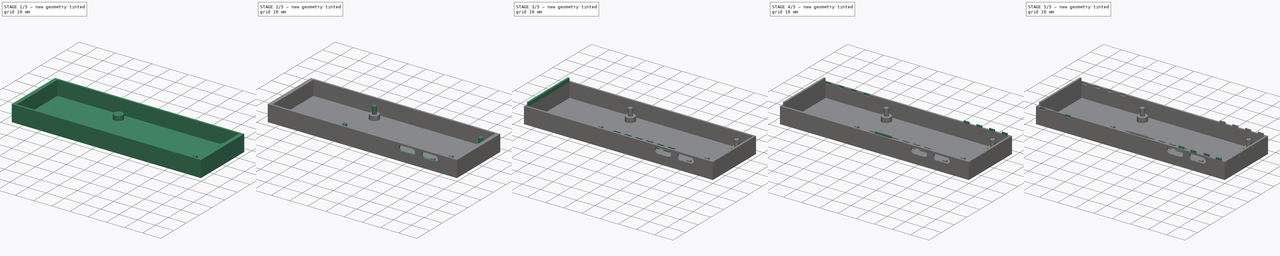
[diagram: build sequence overview — one tinted view per stage of 5, left to right]
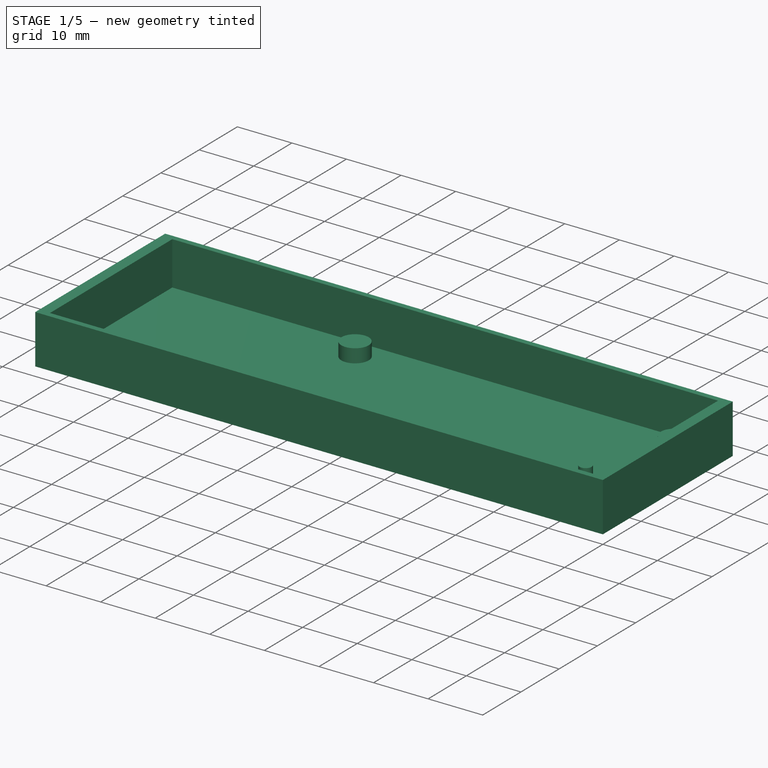
[diagram: stage 1 of 5 — iso view after this stage's code; geometry added in this stage tinted green]
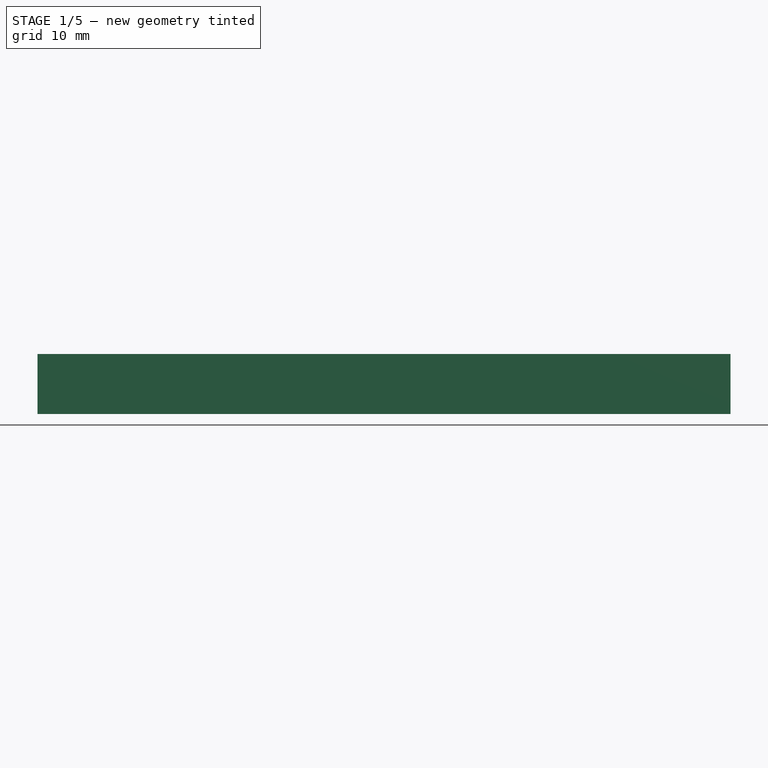
[diagram: stage 1 of 5 — front view after this stage's code; geometry added in this stage tinted green]
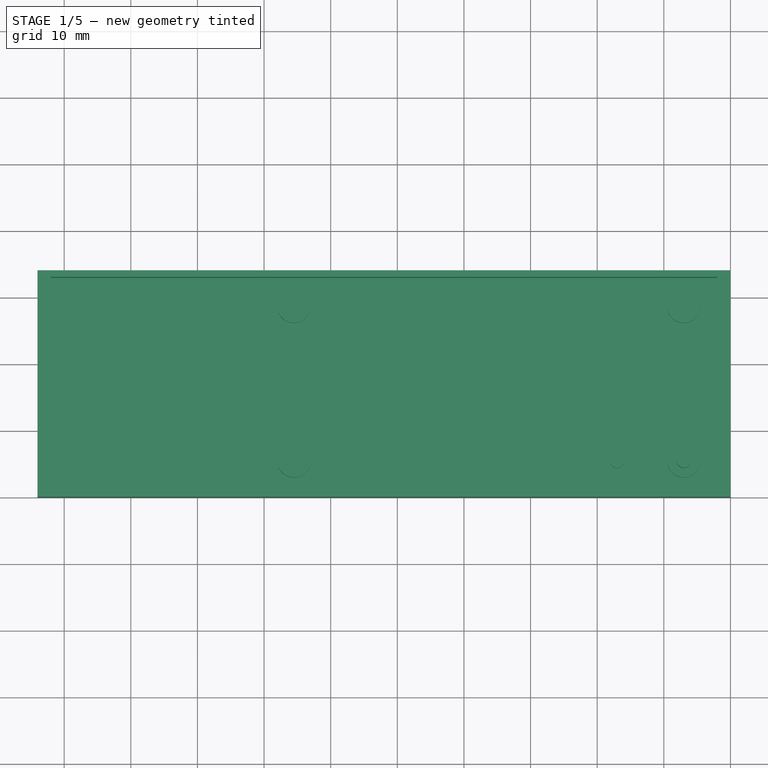
[diagram: stage 1 of 5 — top view after this stage's code; geometry added in this stage tinted green]
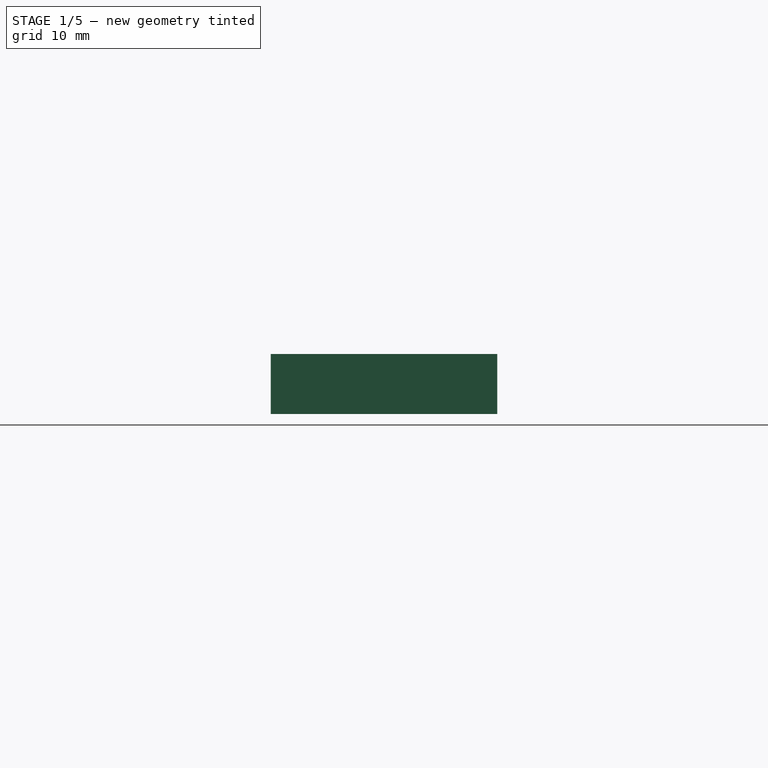
[diagram: stage 1 of 5 — right view after this stage's code; geometry added in this stage tinted green]
FCSTD DOCUMENT  (FreeCAD 0.19R23323 (Git))
Label: raspibox
License: All rights reserved
LicenseURL: http://en.wikipedia.org/wiki/All_rights_reserved
objects: Sketcher::SketchObject×19, PartDesign::Pad×11, PartDesign::Pocket×8, Spreadsheet::Sheet×1, App::Part×1, PartDesign::LinearPattern×1, PartDesign::Body×1
note: 59 computed .brp shape members not serialized (recipe doc carries the construction recipe); baked Part::Feature solids carry a one-line shape summary decoded from their .brp

FEATURE [Spreadsheet::Sheet] Spreadsheet
  cells = A1="inner_x_size; B1(inner_x_size)=100; D1=70; A2="inner_y_size; B2(inner_y_size)=32; A3="inner_z_size; B3(inner_z_size)=8; A5="wall_x_thickness; B5(wall_x_thickness)=2; A6="wall_y_thickness; B6(wall_y_thickness)=1; A7="wall_z_thickness; B7(wall_z_thickness)=1; A9="inlet_height; B9(inlet_height)=2; A11="pin_rect_x_origin; B11(pin_rect_x_origin)=5; A12="pin_rect_y_origin; B12(pin_rect_y_origin)=4.5; A13="pin_rect_x_size; B13(pin_rect_x_size)=58.5; A14="pin_rect_y_size; B14(pin_rect_y_size)=23.2; A16="base_pin_diameter; B16(base_pin_diameter)=5; A17="base_pin_height; B17(base_pin_height)=2.5; A19="thin_pin_diameter; B19(thin_pin_diameter)=2.2; D19=2.5 is too tight; A20="thin_pin_height; B20(thin_pin_height)=4; A22="thin_key_pin_offset; B22(thin_key_pin_offset)=10; A24="usb1_offset; B24(usb1_offset)=5; A25="usb2_offset; B25(usb2_offset)=17.5; A27="pcb_thickness; B27(pcb_thickness)=1.5; A29="usb_hole_z_size; B29(usb_hole_z_size)=3; A30="usb_hole_x_size; B30(usb_hole_x_size)=9; A32="vent_hole_x_size; B32(vent_hole_x_size)=3; A33="vent_hole_y_size; B33(vent_hole_y_size)=1; A35="vent_hole_x_origin; B35(vent_hole_x_origin)=60; A36="vent_hole_y_origin; B36(vent_hole_y_origin)=10; A38="vent_hole_x_rect_size; B38(vent_hole_x_rect_size)=30; A39="vent_hole_y_rect_size; B39(vent_hole_y_rect_size)=20; A40="vent_hole_x_reps; B40(vent_hole_x_reps)=6; A41="vent_hole_y_reps; B41(vent_hole_y_reps)=5; A43="inlet_x_distance; B43(inlet_x_distance)=4; A44="inlet_x_size; B44(inlet_x_size)=3; A45="inlet_side_height; B45(inlet_side_height)=1
FEATURE [App::Part] Part
  Origin = -> Origin
FEATURE [Sketcher::SketchObject] Sketch  label="outerbox"
  MapMode = 5
  Support = -> [XY_Plane001]
  expr: Constraints[10] = Spreadsheet.inner_y_size + 2 * Spreadsheet.wall_y_thickness
  expr: Constraints[9] = Spreadsheet.inner_x_size + 2 * Spreadsheet.wall_x_thickness
  sketch-geometry (4):
    g0: LineSegment StartX=-104 StartY=34 StartZ=0 EndX=0 EndY=34 EndZ=0
    g1: LineSegment StartX=0 StartY=34 StartZ=0 EndX=0 EndY=0 EndZ=0
    g2: LineSegment StartX=0 StartY=0 StartZ=0 EndX=-104 EndY=0 EndZ=0
    g3: LineSegment StartX=-104 StartY=0 StartZ=0 EndX=-104 EndY=34 EndZ=0
  constraints (11):
    c: Coincident(g0,g1)
    c: Coincident(g1,g2)
    c: Coincident(g2,g3)
    c: Coincident(g3,g0)
    c: Horizontal(g0)
    c: Horizontal(g2)
    c: Vertical(g1)
    c: Vertical(g3)
    c: Coincident(g1,g-1)
    c: DistanceX(g0,g0) = 104
    c: DistanceY(g2,g0) = 34
FEATURE [PartDesign::Pad] Pad
  Direction = (1,1,1)
  Length = 9
  Length2 = 100
  Profile = -> Sketch
  Type = 0
  expr: Length = Spreadsheet.inner_z_size + Spreadsheet.wall_z_thickness
FEATURE [Sketcher::SketchObject] Sketch001  label="innerbox"
  MapMode = 5
  Placement = pos=(0,0,9) rot=(0,0,1;0rad)
  Support = -> [Pad]
  expr: Constraints[11] = Spreadsheet.inner_y_size
  expr: Constraints[10] = Spreadsheet.inner_x_size
  expr: Constraints[9] = Spreadsheet.wall_x_thickness
  expr: Constraints[8] = Spreadsheet.wall_y_thickness
  sketch-geometry (4):
    g0: LineSegment StartX=-102 StartY=33 StartZ=0 EndX=-2 EndY=33 EndZ=0
    g1: LineSegment StartX=-2 StartY=33 StartZ=0 EndX=-2 EndY=1 EndZ=0
    g2: LineSegment StartX=-2 StartY=1 StartZ=0 EndX=-102 EndY=1 EndZ=0
    g3: LineSegment StartX=-102 StartY=1 StartZ=0 EndX=-102 EndY=33 EndZ=0
  constraints (12):
    c: Coincident(g0,g1)
    c: Coincident(g1,g2)
    c: Coincident(g2,g3)
    c: Coincident(g3,g0)
    c: Horizontal(g0)
    c: Horizontal(g2)
    c: Vertical(g1)
    c: Vertical(g3)
    c: DistanceY(g-1,g1) = 1
    c: DistanceX(g1,g-1) = 2
    c: DistanceX(g0,g0) = 100
    c: DistanceY(g2,g0) = 32
FEATURE [PartDesign::Pocket] Pocket
  BaseFeature = -> Pad
  Length = 8
  Length2 = 100
  Profile = -> Sketch001
  Type = 0
  expr: Length = Spreadsheet.inner_z_size
FEATURE [Sketcher::SketchObject] Sketch002  label="base_pins"
  MapMode = 5
  Placement = pos=(0,0,1) rot=(0,0,1;0rad)
  Support = -> [Pocket]
  expr: Constraints[14] = Spreadsheet.thin_key_pin_offset
  expr: Constraints[13] = Spreadsheet.pin_rect_x_origin + Spreadsheet.wall_x_thickness
  expr: Constraints[2] = Spreadsheet.base_pin_diameter / 2
  expr: Constraints[5] = Spreadsheet.pin_rect_y_origin + Spreadsheet.wall_y_thickness
  expr: Constraints[10] = Spreadsheet.pin_rect_y_size
  expr: Constraints[4] = Spreadsheet.thin_pin_diameter / 2
  expr: Constraints[3] = Spreadsheet.base_pin_diameter / 2
  expr: Constraints[6] = Spreadsheet.pin_rect_x_size
  expr: Constraints[1] = Spreadsheet.base_pin_diameter / 2
  expr: Constraints[0] = Spreadsheet.base_pin_diameter / 2
  sketch-geometry (5):
    g0: Circle CenterX=-65.5 CenterY=5.5 CenterZ=0 NormalX=0 NormalY=0 NormalZ=1 AngleXU=0 Radius=2.5
    g1: Circle CenterX=-65.5 CenterY=28.7 CenterZ=0 NormalX=0 NormalY=0 NormalZ=1 AngleXU=0 Radius=2.5
    g2: Circle CenterX=-7 CenterY=28.7 CenterZ=0 NormalX=0 NormalY=0 NormalZ=1 AngleXU=0 Radius=2.5
    g3: Circle CenterX=-7 CenterY=5.5 CenterZ=0 NormalX=0 NormalY=0 NormalZ=1 AngleXU=0 Radius=2.5
    g4: Circle CenterX=-17 CenterY=5.5 CenterZ=0 NormalX=0 NormalY=0 NormalZ=1 AngleXU=0 Radius=1.1
  constraints (15):
    c: Radius(g0) = 2.5
    c: Radius(g1) = 2.5
    c: Radius(g2) = 2.5
    c: Radius(g3) = 2.5
    c: Radius(g4) = 1.1
    c: DistanceY(g-1,g3) = 5.5
    c: DistanceX(g1,g2) = 58.5
    c: Vertical(g0,g1)
    c: Horizontal(g2,g1)
    c: Horizontal(g0,g3)
    c: DistanceY(g0,g1) = 23.2
    c: Horizontal(g4,g3)
    c: Vertical(g3,g2)
    c: DistanceX(g3,g-1) = 7
    c: DistanceX(g4,g3) = 10
FEATURE [PartDesign::Pad] Pad001
  BaseFeature = -> Pocket
  Direction = (1,1,1)
  Length = 2.5
  Length2 = 100
  Profile = -> Sketch002
  Type = 0
  expr: Length = Spreadsheet.base_pin_height
FEATURE [Sketcher::SketchObject] Sketch003  label="thin_pin1"
  ExternalGeometry = -> [Pad001]
  MapMode = 5
  Placement = pos=(0,0,3.5) rot=(0,0,1;0rad)
  Support = -> [Pad001]
  expr: Constraints[0] = Spreadsheet.thin_pin_diameter / 2
  sketch-geometry (1):
    g0: Circle CenterX=-7 CenterY=5.5 CenterZ=0 NormalX=0 NormalY=0 NormalZ=1 AngleXU=0 Radius=1.1
  constraints (2):
    c: Radius(g0) = 1.1
    c: Coincident(g-3,g0)
FEATURE [PartDesign::Pad] Pad002
  BaseFeature = -> Pad001
  Direction = (1,1,1)
  Length = 4
  Length2 = 100
  Profile = -> Sketch003
  Type = 0
  expr: Length = Spreadsheet.thin_pin_height
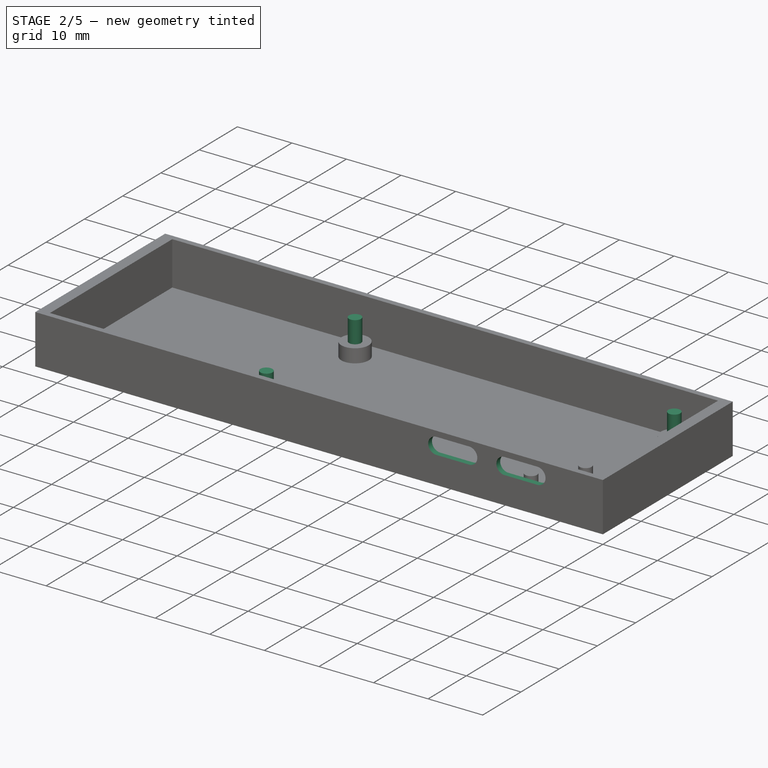
[diagram: stage 2 of 5 — iso view after this stage's code; geometry added in this stage tinted green]
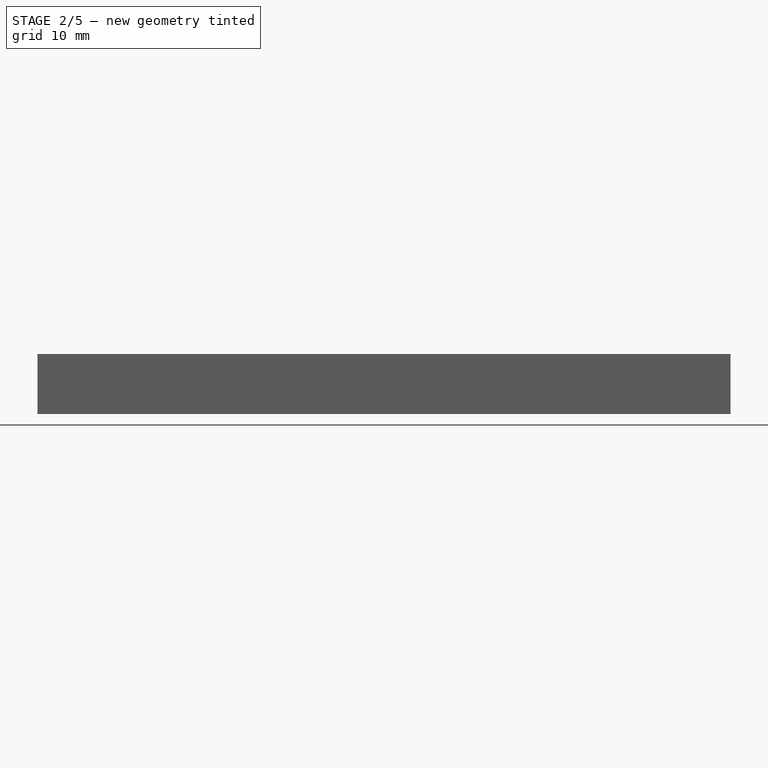
[diagram: stage 2 of 5 — front view after this stage's code; geometry added in this stage tinted green]
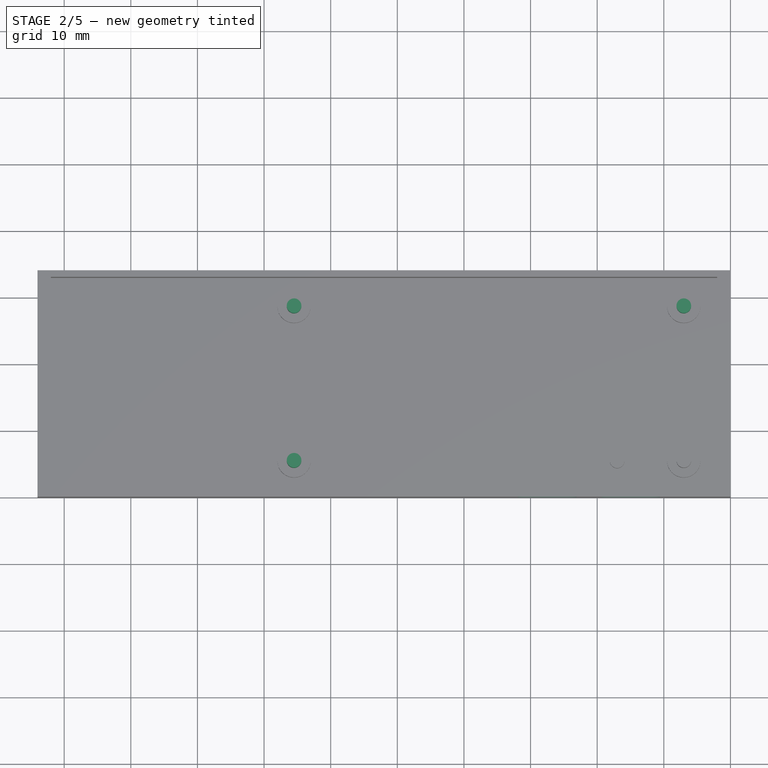
[diagram: stage 2 of 5 — top view after this stage's code; geometry added in this stage tinted green]
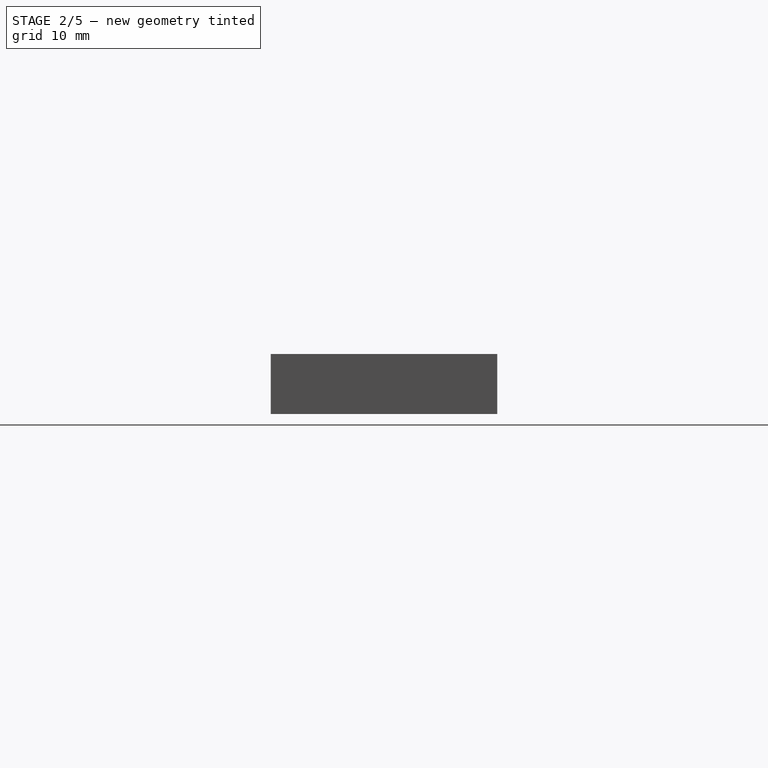
[diagram: stage 2 of 5 — right view after this stage's code; geometry added in this stage tinted green]
FEATURE [Sketcher::SketchObject] Sketch004  label="thin_pin2"
  ExternalGeometry = -> [Pad002]
  MapMode = 5
  Placement = pos=(0,0,3.5) rot=(0,0,1;0rad)
  Support = -> [Pad002]
  expr: Constraints[1] = Spreadsheet.thin_pin_diameter / 2
  sketch-geometry (1):
    g0: Circle CenterX=-7 CenterY=28.7 CenterZ=0 NormalX=0 NormalY=0 NormalZ=1 AngleXU=0 Radius=1.1
  constraints (2):
    c: Coincident(g-3,g0)
    c: Radius(g0) = 1.1
FEATURE [PartDesign::Pad] Pad003
  BaseFeature = -> Pad002
  Direction = (1,1,1)
  Length = 4
  Length2 = 100
  Profile = -> Sketch004
  Type = 0
  expr: Length = Spreadsheet.thin_pin_height
FEATURE [Sketcher::SketchObject] Sketch005  label="thin_pin3"
  ExternalGeometry = -> [Pad003]
  MapMode = 5
  Placement = pos=(0,0,3.5) rot=(0,0,1;0rad)
  Support = -> [Pad003]
  expr: Constraints[1] = Spreadsheet.thin_pin_diameter / 2
  sketch-geometry (1):
    g0: Circle CenterX=-65.5 CenterY=28.7 CenterZ=0 NormalX=0 NormalY=0 NormalZ=1 AngleXU=0 Radius=1.1
  constraints (2):
    c: Coincident(g-3,g0)
    c: Radius(g0) = 1.1
FEATURE [PartDesign::Pad] Pad004
  BaseFeature = -> Pad003
  Direction = (1,1,1)
  Length = 4
  Length2 = 100
  Profile = -> Sketch005
  Type = 0
  expr: Length = Spreadsheet.thin_pin_height
FEATURE [Sketcher::SketchObject] Sketch006  label="thin_pin4"
  ExternalGeometry = -> [Pad004]
  MapMode = 5
  Placement = pos=(0,0,3.5) rot=(0,0,1;0rad)
  Support = -> [Pad004]
  expr: Constraints[1] = Spreadsheet.thin_pin_diameter / 2
  sketch-geometry (1):
    g0: Circle CenterX=-65.5 CenterY=5.5 CenterZ=0 NormalX=0 NormalY=0 NormalZ=1 AngleXU=0 Radius=1.1
  constraints (2):
    c: Coincident(g0,g-3)
    c: Radius(g0) = 1.1
FEATURE [PartDesign::Pad] Pad005
  BaseFeature = -> Pad004
  Direction = (1,1,1)
  Length = 4
  Length2 = 100
  Profile = -> Sketch006
  Type = 0
  expr: Length = Spreadsheet.thin_pin_height
FEATURE [Sketcher::SketchObject] Sketch007  label="usb_ports"
  MapMode = 5
  Placement = pos=(0,0,0) rot=(1,0,0;1.5708rad)
  Support = -> [Pad005]
  expr: Constraints[19] = Spreadsheet.usb2_offset + Spreadsheet.wall_x_thickness + Spreadsheet.pin_rect_x_origin
  expr: Constraints[18] = Spreadsheet.usb_hole_x_size - Spreadsheet.usb_hole_z_size
  expr: Constraints[9] = Spreadsheet.usb1_offset + Spreadsheet.wall_x_thickness + Spreadsheet.pin_rect_x_origin
  expr: Constraints[8] = Spreadsheet.usb_hole_x_size - Spreadsheet.usb_hole_z_size
  expr: Constraints[7] = Spreadsheet.usb_hole_z_size
  expr: Constraints[6] = Spreadsheet.pcb_thickness + Spreadsheet.base_pin_height + Spreadsheet.wall_z_thickness
  sketch-geometry (8):
    g0: ArcOfCircle CenterX=-18 CenterY=6.5 CenterZ=0 NormalX=0 NormalY=0 NormalZ=1 AngleXU=0 Radius=1.5 StartAngle=1.5708 EndAngle=4.71239
    g1: ArcOfCircle CenterX=-12 CenterY=6.5 CenterZ=0 NormalX=0 NormalY=0 NormalZ=1 AngleXU=0 Radius=1.5 StartAngle=4.71239 EndAngle=7.85398
    g2: LineSegment StartX=-18 StartY=5 StartZ=0 EndX=-12 EndY=5 EndZ=0
    g3: LineSegment StartX=-18 StartY=8 StartZ=0 EndX=-12 EndY=8 EndZ=0
    g4: ArcOfCircle CenterX=-30.5 CenterY=6.5 CenterZ=0 NormalX=0 NormalY=0 NormalZ=1 AngleXU=0 Radius=1.5 StartAngle=1.5708 EndAngle=4.71239
    g5: ArcOfCircle CenterX=-24.5 CenterY=6.5 CenterZ=0 NormalX=0 NormalY=0 NormalZ=1 AngleXU=0 Radius=1.5 StartAngle=4.71239 EndAngle=7.85398
    g6: LineSegment StartX=-30.5 StartY=5 StartZ=0 EndX=-24.5 EndY=5 EndZ=0
    g7: LineSegment StartX=-30.5 StartY=8 StartZ=0 EndX=-24.5 EndY=8 EndZ=0
  constraints (20):
    c: Tangent(g0,g3)
    c: Tangent(g0,g2)
    c: Tangent(g2,g1)
    c: Tangent(g3,g1)
    c: Horizontal(g2)
    c: Equal(g0,g1)
    c: DistanceY(g-1,g1) = 5
    c: DistanceY(g1,g1) = 3
    c: DistanceX(g0,g1) = 6
    c: DistanceX(g1,g-1) = 12
    c: Tangent(g4,g7)
    c: Tangent(g4,g6)
    c: Tangent(g6,g5)
    c: Tangent(g7,g5)
    c: Horizontal(g6)
    c: Equal(g4,g5)
    c: Horizontal(g5,g0)
    c: Horizontal(g5,g0)
    c: DistanceX(g4,g5) = 6
    c: DistanceX(g5,g-1) = 24.5
FEATURE [PartDesign::Pocket] Pocket001
  BaseFeature = -> Pad005
  Length = 1
  Length2 = 100
  Profile = -> Sketch007
  Type = 0
  expr: Length = Spreadsheet.wall_y_thickness
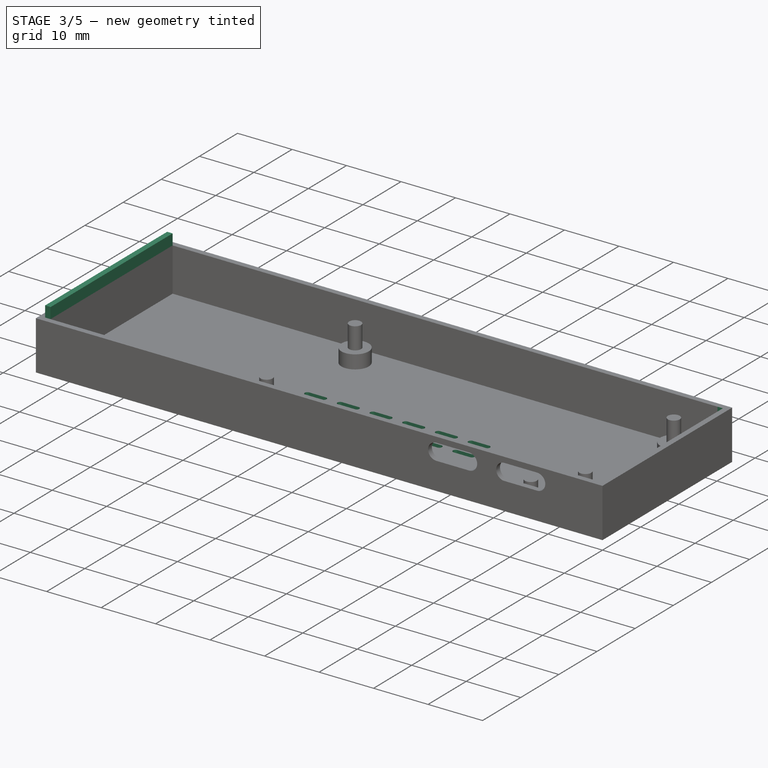
[diagram: stage 3 of 5 — iso view after this stage's code; geometry added in this stage tinted green]
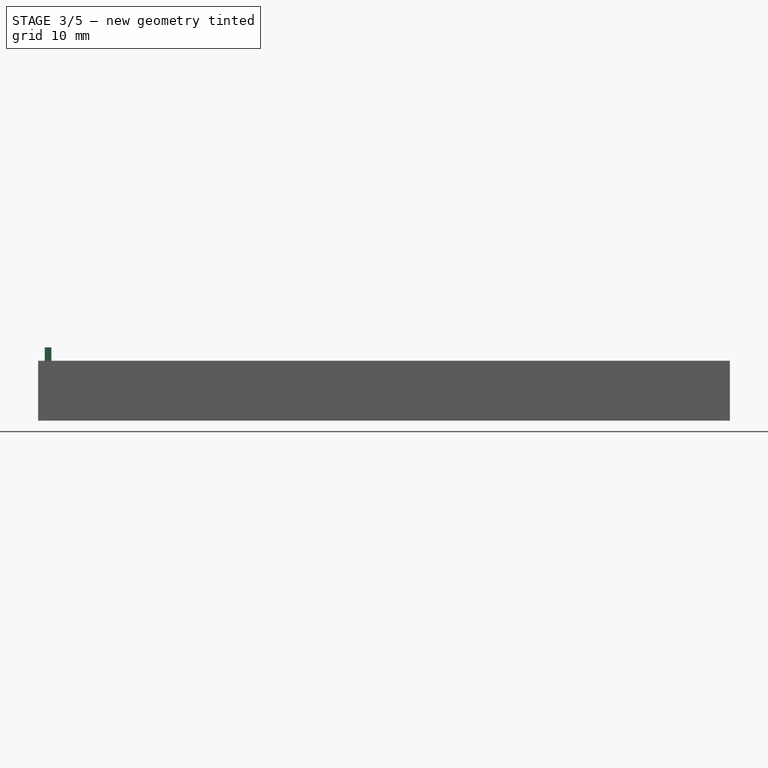
[diagram: stage 3 of 5 — front view after this stage's code; geometry added in this stage tinted green]
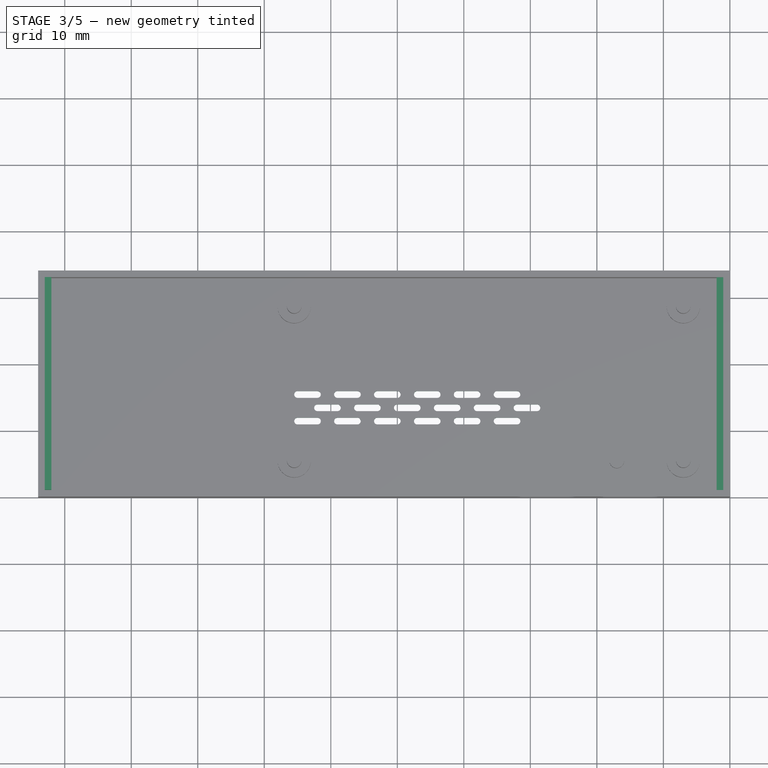
[diagram: stage 3 of 5 — top view after this stage's code; geometry added in this stage tinted green]
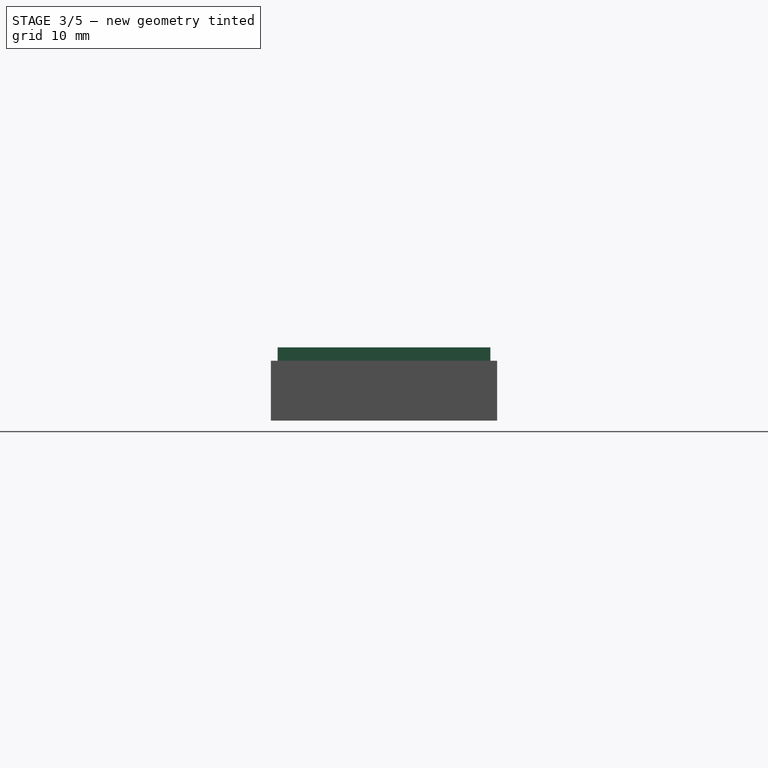
[diagram: stage 3 of 5 — right view after this stage's code; geometry added in this stage tinted green]
FEATURE [Sketcher::SketchObject] Sketch008  label="x_outlet"
  ExternalGeometry = -> [Pocket001]
  MapMode = 5
  Placement = pos=(0,0,9) rot=(0,0,1;0rad)
  Support = -> [Pocket001]
  expr: Constraints[8] = Spreadsheet.wall_x_thickness / 2
  sketch-geometry (4):
    g0: LineSegment StartX=-103 StartY=33 StartZ=0 EndX=-102 EndY=33 EndZ=0
    g1: LineSegment StartX=-102 StartY=33 StartZ=0 EndX=-102 EndY=1 EndZ=0
    g2: LineSegment StartX=-102 StartY=1 StartZ=0 EndX=-103 EndY=1 EndZ=0
    g3: LineSegment StartX=-103 StartY=1 StartZ=0 EndX=-103 EndY=33 EndZ=0
  constraints (11):
    c: Coincident(g0,g1)
    c: Coincident(g1,g2)
    c: Coincident(g2,g3)
    c: Coincident(g3,g0)
    c: Horizontal(g0)
    c: Horizontal(g2)
    c: Vertical(g1)
    c: Vertical(g3)
    c: DistanceX(g0,g0) = 1
    c: Coincident(g0,g-3)
    c: Horizontal(g2,g-3)
FEATURE [PartDesign::Pad] Pad006
  BaseFeature = -> Pocket001
  Direction = (1,1,1)
  Length = 2
  Length2 = 100
  Profile = -> Sketch008
  Type = 0
  expr: Length = Spreadsheet.inlet_height
FEATURE [Sketcher::SketchObject] Sketch009  label="x_inlet"
  ExternalGeometry = -> [Pad006]
  MapMode = 5
  Placement = pos=(0,0,9) rot=(0,0,1;0rad)
  Support = -> [Pad006]
  expr: Constraints[10] = Spreadsheet.wall_x_thickness / 2
  sketch-geometry (4):
    g0: LineSegment StartX=-2 StartY=33 StartZ=0 EndX=-1 EndY=33 EndZ=0
    g1: LineSegment StartX=-1 StartY=33 StartZ=0 EndX=-1 EndY=1 EndZ=0
    g2: LineSegment StartX=-1 StartY=1 StartZ=0 EndX=-2 EndY=1 EndZ=0
    g3: LineSegment StartX=-2 StartY=1 StartZ=0 EndX=-2 EndY=33 EndZ=0
  constraints (11):
    c: Coincident(g0,g1)
    c: Coincident(g1,g2)
    c: Coincident(g2,g3)
    c: Coincident(g3,g0)
    c: Horizontal(g0)
    c: Horizontal(g2)
    c: Vertical(g1)
    c: Vertical(g3)
    c: Coincident(g-3,g0)
    c: Horizontal(g1,g-3)
    c: DistanceX(g2,g1) = 1
FEATURE [PartDesign::Pocket] Pocket002
  BaseFeature = -> Pad006
  Length = 2
  Length2 = 100
  Profile = -> Sketch009
  Type = 0
  expr: Length = Spreadsheet.inlet_height
FEATURE [Sketcher::SketchObject] Sketch010  label="vent_hole"
  MapMode = 5
  Placement = pos=(0,0,1) rot=(0,0,1;0rad)
  Support = -> [Pocket002]
  expr: Constraints[29] = Spreadsheet.vent_hole_y_size
  expr: Constraints[28] = Spreadsheet.vent_hole_y_size
  expr: Constraints[19] = Spreadsheet.vent_hole_y_size
  expr: Constraints[17] = Spreadsheet.vent_hole_y_size
  expr: Constraints[9] = Spreadsheet.vent_hole_y_origin + Spreadsheet.wall_y_thickness
  expr: Constraints[16] = Spreadsheet.vent_hole_x_size
  expr: Constraints[8] = Spreadsheet.vent_hole_x_origin + Spreadsheet.wall_x_thickness
  expr: Constraints[7] = Spreadsheet.vent_hole_y_size
  expr: Constraints[6] = Spreadsheet.vent_hole_x_size
  sketch-geometry (12):
    g0: ArcOfCircle CenterX=-65 CenterY=11.5 CenterZ=0 NormalX=0 NormalY=0 NormalZ=1 AngleXU=0 Radius=0.5 StartAngle=1.5708 EndAngle=4.71239
    g1: ArcOfCircle CenterX=-62 CenterY=11.5 CenterZ=0 NormalX=0 NormalY=0 NormalZ=1 AngleXU=0 Radius=0.5 StartAngle=4.71239 EndAngle=7.85398
    g2: LineSegment StartX=-65 StartY=11 StartZ=0 EndX=-62 EndY=11 EndZ=0
    g3: LineSegment StartX=-65 StartY=12 StartZ=0 EndX=-62 EndY=12 EndZ=0
    g4: ArcOfCircle CenterX=-62 CenterY=13.5 CenterZ=0 NormalX=0 NormalY=0 NormalZ=1 AngleXU=0 Radius=0.5 StartAngle=1.5708 EndAngle=4.71239
    g5: ArcOfCircle CenterX=-59 CenterY=13.5 CenterZ=0 NormalX=0 NormalY=0 NormalZ=1 AngleXU=0 Radius=0.5 StartAngle=4.71239 EndAngle=7.85398
    g6: LineSegment StartX=-62 StartY=13 StartZ=0 EndX=-59 EndY=13 EndZ=0
    g7: LineSegment StartX=-62 StartY=14 StartZ=0 EndX=-59 EndY=14 EndZ=0
    g8: ArcOfCircle CenterX=-65 CenterY=15.5 CenterZ=0 NormalX=0 NormalY=0 NormalZ=1 AngleXU=0 Radius=0.5 StartAngle=1.5708 EndAngle=4.71239
    g9: ArcOfCircle CenterX=-62 CenterY=15.5 CenterZ=0 NormalX=0 NormalY=0 NormalZ=1 AngleXU=0 Radius=0.5 StartAngle=4.71239 EndAngle=7.85398
    g10: LineSegment StartX=-65 StartY=15 StartZ=0 EndX=-62 EndY=15 EndZ=0
    g11: LineSegment StartX=-65 StartY=16 StartZ=0 EndX=-62 EndY=16 EndZ=0
  constraints (30):
    c: Tangent(g0,g3)
    c: Tangent(g0,g2)
    c: Tangent(g2,g1)
    c: Tangent(g3,g1)
    c: Horizontal(g2)
    c: Equal(g0,g1)
    c: DistanceX(g0,g1) = 3
    c: DistanceY(g0,g0) = 1
    c: DistanceX(g1,g-1) = 62
    c: DistanceY(g-1,g1) = 11
    c: Tangent(g4,g7)
    c: Tangent(g4,g6)
    c: Tangent(g6,g5)
    c: Tangent(g7,g5)
    c: Horizontal(g6)
    c: Equal(g4,g5)
    c: DistanceX(g4,g5) = 3
    c: DistanceY(g5,g5) = 1
    c: Vertical(g4,g1)
    c: DistanceY(g1,g4) = 1
    c: Tangent(g8,g11)
    c: Tangent(g8,g10)
    c: Tangent(g10,g9)
    c: Tangent(g11,g9)
    c: Horizontal(g10)
    c: Equal(g8,g9)
    c: Vertical(g8,g0)
    c: Vertical(g1,g9)
    c: DistanceY(g9,g9) = 1
    c: DistanceY(g4,g9) = 1
FEATURE [PartDesign::Pocket] Pocket003
  BaseFeature = -> Pocket002
  Length = 1
  Length2 = 100
  Profile = -> Sketch010
  Type = 0
  expr: Length = Spreadsheet.wall_z_thickness
FEATURE [PartDesign::LinearPattern] LinearPattern
  BaseFeature = -> Pocket003
  Direction = -> Sketch010 [H_Axis]
  Length = 30
  Occurrences = 6
  Originals = -> [Pocket003]
  expr: Length = Spreadsheet.vent_hole_x_rect_size
  expr: Occurrences = Spreadsheet.vent_hole_x_reps
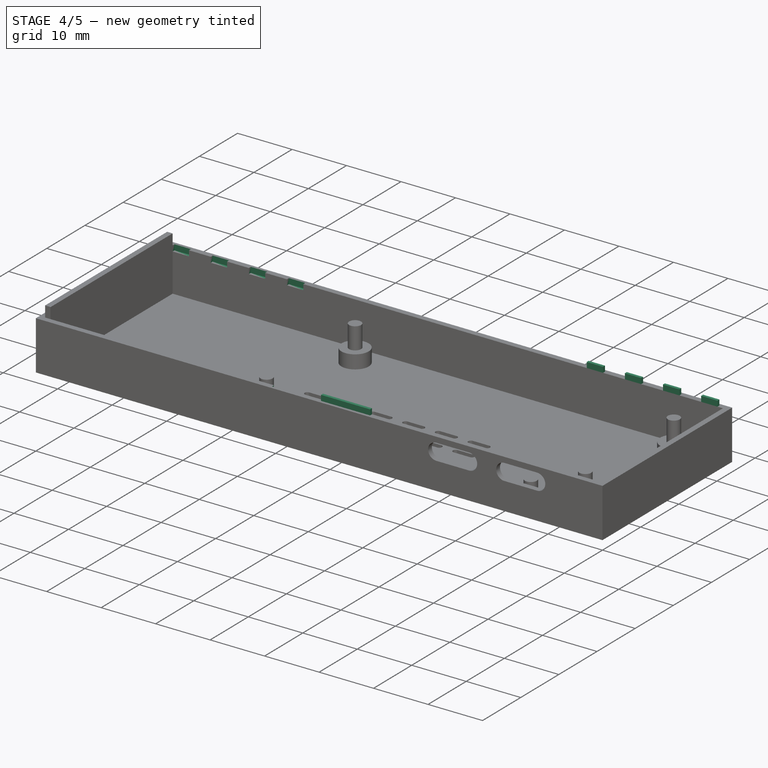
[diagram: stage 4 of 5 — iso view after this stage's code; geometry added in this stage tinted green]
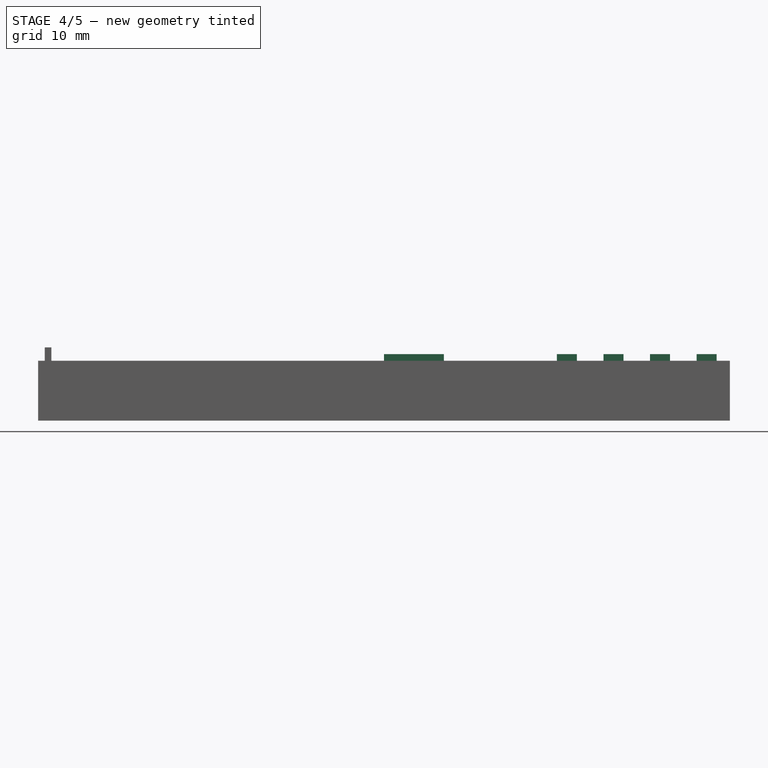
[diagram: stage 4 of 5 — front view after this stage's code; geometry added in this stage tinted green]
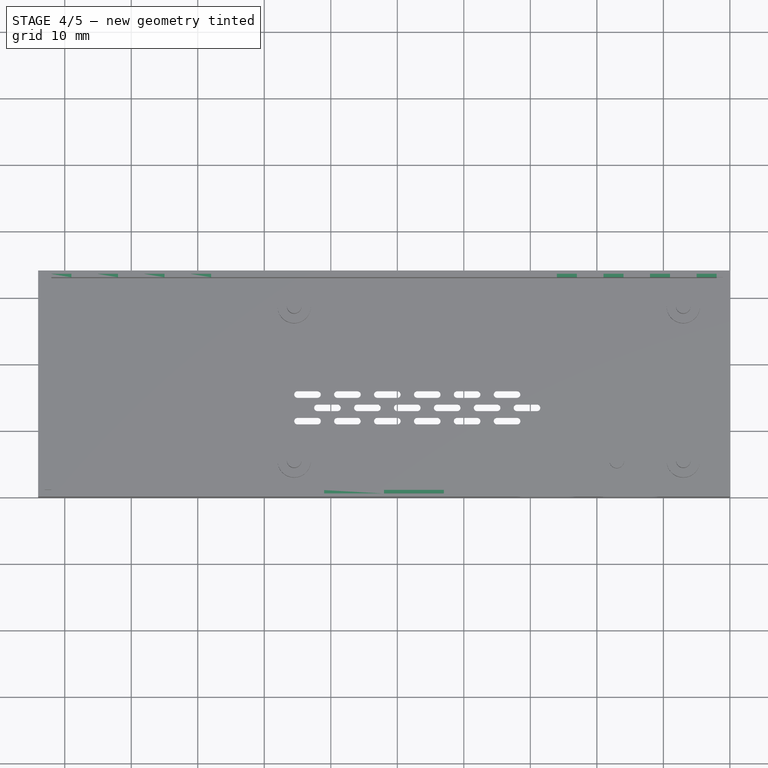
[diagram: stage 4 of 5 — top view after this stage's code; geometry added in this stage tinted green]
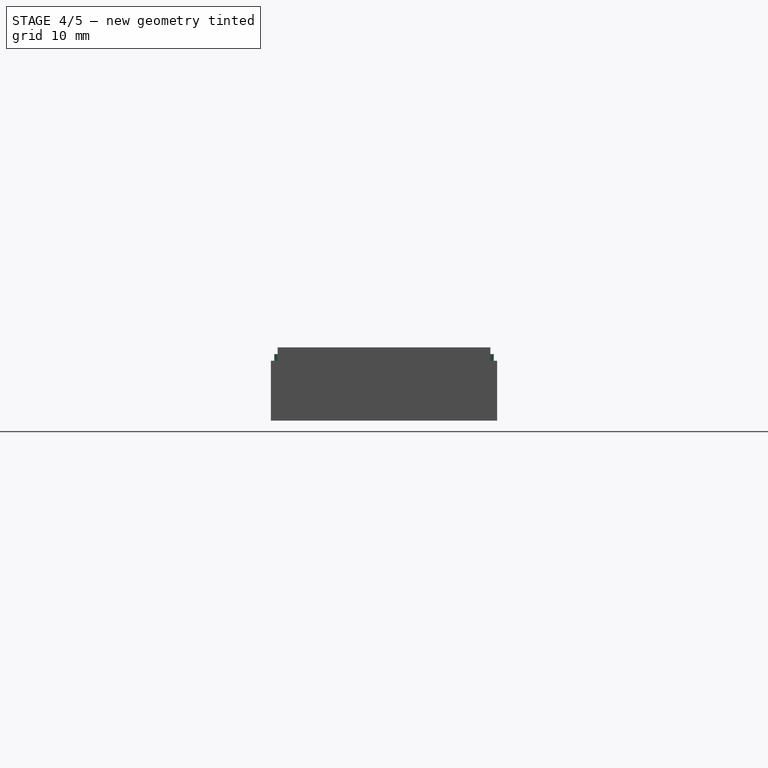
[diagram: stage 4 of 5 — right view after this stage's code; geometry added in this stage tinted green]
FEATURE [Sketcher::SketchObject] Sketch011  label="side_inlets"
  ExternalGeometry = -> [LinearPattern]
  MapMode = 5
  Placement = pos=(0,0,9) rot=(0,0,1;0rad)
  Support = -> [LinearPattern]
  expr: Constraints[46] = Spreadsheet.inlet_x_size
  expr: Constraints[44] = Spreadsheet.inlet_x_size
  expr: Constraints[43] = Spreadsheet.inlet_x_distance
  expr: Constraints[21] = Spreadsheet.inlet_x_size
  expr: Constraints[45] = Spreadsheet.inlet_x_distance
  expr: Constraints[20] = Spreadsheet.inlet_x_distance
  expr: Constraints[10] = Spreadsheet.inlet_x_size
  expr: Constraints[9] = Spreadsheet.wall_y_thickness / 2
  sketch-geometry (16):
    g0: LineSegment StartX=-102 StartY=33.5 StartZ=0 EndX=-99 EndY=33.5 EndZ=0
    g1: LineSegment StartX=-99 StartY=33.5 StartZ=0 EndX=-99 EndY=33 EndZ=0
    g2: LineSegment StartX=-99 StartY=33 StartZ=0 EndX=-102 EndY=33 EndZ=0
    g3: LineSegment StartX=-102 StartY=33 StartZ=0 EndX=-102 EndY=33.5 EndZ=0
    g4: LineSegment StartX=-95 StartY=33.5 StartZ=0 EndX=-92 EndY=33.5 EndZ=0
    g5: LineSegment StartX=-92 StartY=33.5 StartZ=0 EndX=-92 EndY=33 EndZ=0
    g6: LineSegment StartX=-92 StartY=33 StartZ=0 EndX=-95 EndY=33 EndZ=0
    g7: LineSegment StartX=-95 StartY=33 StartZ=0 EndX=-95 EndY=33.5 EndZ=0
    g8: LineSegment StartX=-88 StartY=33.5 StartZ=0 EndX=-85 EndY=33.5 EndZ=0
    g9: LineSegment StartX=-85 StartY=33.5 StartZ=0 EndX=-85 EndY=33 EndZ=0
    g10: LineSegment StartX=-85 StartY=33 StartZ=0 EndX=-88 EndY=33 EndZ=0
    g11: LineSegment StartX=-88 StartY=33 StartZ=0 EndX=-88 EndY=33.5 EndZ=0
    g12: LineSegment StartX=-81 StartY=33.5 StartZ=0 EndX=-78 EndY=33.5 EndZ=0
    g13: LineSegment StartX=-78 StartY=33.5 StartZ=0 EndX=-78 EndY=33 EndZ=0
    g14: LineSegment StartX=-78 StartY=33 StartZ=0 EndX=-81 EndY=33 EndZ=0
    g15: LineSegment StartX=-81 StartY=33 StartZ=0 EndX=-81 EndY=33.5 EndZ=0
  constraints (47):
    c: Coincident(g0,g1)
    c: Coincident(g1,g2)
    c: Coincident(g2,g3)
    c: Coincident(g3,g0)
    c: Horizontal(g0)
    c: Horizontal(g2)
    c: Vertical(g1)
    c: Vertical(g3)
    c: Coincident(g2,g-3)
    c: DistanceY(g1,g0) = 0.5
    c: DistanceX(g0,g0) = 3
    c: Coincident(g4,g5)
    c: Coincident(g5,g6)
    c: Coincident(g6,g7)
    c: Coincident(g7,g4)
    c: Horizontal(g4)
    c: Horizontal(g6)
    c: Vertical(g5)
    c: Vertical(g7)
    c: Horizontal(g6,g1)
    c: DistanceX(g0,g4) = 4
    c: DistanceX(g4,g4) = 3
    c: Horizontal(g4,g0)
    c: Coincident(g8,g9)
    c: Coincident(g9,g10)
    c: Coincident(g10,g11)
    c: Coincident(g11,g8)
    c: Horizontal(g8)
    c: Horizontal(g10)
    c: Vertical(g9)
    c: Vertical(g11)
    c: Coincident(g12,g13)
    c: Coincident(g13,g14)
    c: Coincident(g14,g15)
    c: Coincident(g15,g12)
    c: Horizontal(g12)
    c: Horizontal(g14)
    c: Vertical(g13)
    c: Vertical(g15)
    c: Horizontal(g10,g5)
    c: Horizontal(g14,g9)
    c: Horizontal(g8,g12)
    c: Horizontal(g8,g4)
    c: DistanceX(g4,g8) = 4
    c: DistanceX(g8,g8) = 3
    c: DistanceX(g8,g12) = 4
    c: DistanceX(g12,g12) = 3
FEATURE [PartDesign::Pocket] Pocket004
  BaseFeature = -> LinearPattern
  Length = 1
  Length2 = 100
  Profile = -> Sketch011
  Type = 0
  expr: Length = Spreadsheet.inlet_side_height
FEATURE [Sketcher::SketchObject] Sketch012  label="side_outlets"
  ExternalGeometry = -> [Pocket004]
  MapMode = 5
  Placement = pos=(0,0,9) rot=(0,0,1;0rad)
  Support = -> [Pocket004]
  expr: Constraints[37] = Spreadsheet.inlet_x_distance
  expr: Constraints[35] = Spreadsheet.inlet_x_size
  expr: Constraints[36] = Spreadsheet.inlet_x_distance
  expr: Constraints[34] = Spreadsheet.inlet_x_size
  expr: Constraints[33] = Spreadsheet.inlet_x_size
  expr: Constraints[38] = Spreadsheet.inlet_x_distance
  expr: Constraints[32] = Spreadsheet.inlet_x_size
  sketch-geometry (16):
    g0: LineSegment StartX=-5 StartY=33.5 StartZ=0 EndX=-2 EndY=33.5 EndZ=0
    g1: LineSegment StartX=-2 StartY=33.5 StartZ=0 EndX=-2 EndY=33 EndZ=0
    g2: LineSegment StartX=-2 StartY=33 StartZ=0 EndX=-5 EndY=33 EndZ=0
    g3: LineSegment StartX=-5 StartY=33 StartZ=0 EndX=-5 EndY=33.5 EndZ=0
    g4: LineSegment StartX=-12 StartY=33.5 StartZ=0 EndX=-9 EndY=33.5 EndZ=0
    g5: LineSegment StartX=-9 StartY=33.5 StartZ=0 EndX=-9 EndY=33 EndZ=0
    g6: LineSegment StartX=-9 StartY=33 StartZ=0 EndX=-12 EndY=33 EndZ=0
    g7: LineSegment StartX=-12 StartY=33 StartZ=0 EndX=-12 EndY=33.5 EndZ=0
    g8: LineSegment StartX=-19 StartY=33.5 StartZ=0 EndX=-16 EndY=33.5 EndZ=0
    g9: LineSegment StartX=-16 StartY=33.5 StartZ=0 EndX=-16 EndY=33 EndZ=0
    g10: LineSegment StartX=-16 StartY=33 StartZ=0 EndX=-19 EndY=33 EndZ=0
    g11: LineSegment StartX=-19 StartY=33 StartZ=0 EndX=-19 EndY=33.5 EndZ=0
    g12: LineSegment StartX=-26 StartY=33.5 StartZ=0 EndX=-23 EndY=33.5 EndZ=0
    g13: LineSegment StartX=-23 StartY=33.5 StartZ=0 EndX=-23 EndY=33 EndZ=0
    g14: LineSegment StartX=-23 StartY=33 StartZ=0 EndX=-26 EndY=33 EndZ=0
    g15: LineSegment StartX=-26 StartY=33 StartZ=0 EndX=-26 EndY=33.5 EndZ=0
  constraints (47):
    c: Coincident(g0,g1)
    c: Coincident(g1,g2)
    c: Coincident(g2,g3)
    c: Coincident(g3,g0)
    c: Horizontal(g0)
    c: Horizontal(g2)
    c: Vertical(g1)
    c: Vertical(g3)
    c: Coincident(g4,g5)
    c: Coincident(g5,g6)
    c: Coincident(g6,g7)
    c: Coincident(g7,g4)
    c: Horizontal(g4)
    c: Horizontal(g6)
    c: Vertical(g5)
    c: Vertical(g7)
    c: Coincident(g8,g9)
    c: Coincident(g9,g10)
    c: Coincident(g10,g11)
    c: Coincident(g11,g8)
    c: Horizontal(g8)
    c: Horizontal(g10)
    c: Vertical(g9)
    c: Vertical(g11)
    c: Coincident(g12,g13)
    c: Coincident(g13,g14)
    c: Coincident(g14,g15)
    c: Coincident(g15,g12)
    c: Horizontal(g12)
    c: Horizontal(g14)
    c: Vertical(g13)
    c: Vertical(g15)
    c: DistanceX(g0,g0) = 3
    c: DistanceX(g4,g4) = 3
    c: DistanceX(g8,g8) = 3
    c: DistanceX(g12,g12) = 3
    c: DistanceX(g4,g0) = 4
    c: DistanceX(g8,g4) = 4
    c: DistanceX(g12,g8) = 4
    c: Horizontal(g0,g4)
    c: Horizontal(g8,g4)
    c: Horizontal(g12,g8)
    c: Horizontal(g13,g10)
    c: Horizontal(g9,g6)
    c: Horizontal(g2,g5)
    c: Coincident(g1,g-3)
    c: Horizontal(g-4,g12)
FEATURE [PartDesign::Pad] Pad007
  BaseFeature = -> Pocket004
  Direction = (1,1,1)
  Length = 1
  Length2 = 100
  Profile = -> Sketch012
  Type = 0
  expr: Length = Spreadsheet.inlet_side_height
FEATURE [Sketcher::SketchObject] Sketch013  label="big_side_inlet"
  ExternalGeometry = -> [Pad007]
  MapMode = 5
  Placement = pos=(0,0,9) rot=(0,0,1;0rad)
  Support = -> [Pad007]
  expr: Constraints[11] = Spreadsheet.inlet_x_size * 3
  expr: Constraints[10] = Spreadsheet.wall_y_thickness / 2
  expr: Constraints[8] = Spreadsheet.inner_x_size / 2
  sketch-geometry (4):
    g0: LineSegment StartX=-61 StartY=1 StartZ=0 EndX=-52 EndY=1 EndZ=0
    g1: LineSegment StartX=-52 StartY=1 StartZ=0 EndX=-52 EndY=0.5 EndZ=0
    g2: LineSegment StartX=-52 StartY=0.5 StartZ=0 EndX=-61 EndY=0.5 EndZ=0
    g3: LineSegment StartX=-61 StartY=0.5 StartZ=0 EndX=-61 EndY=1 EndZ=0
  constraints (12):
    c: Coincident(g0,g1)
    c: Coincident(g1,g2)
    c: Coincident(g2,g3)
    c: Coincident(g3,g0)
    c: Horizontal(g0)
    c: Horizontal(g2)
    c: Vertical(g1)
    c: Vertical(g3)
    c: DistanceX(g-3,g1) = 50
    c: Horizontal(g0,g-3)
    c: DistanceY(g1,g0) = 0.5
    c: DistanceX(g0,g0) = 9
FEATURE [PartDesign::Pocket] Pocket005
  BaseFeature = -> Pad007
  Length = 1
  Length2 = 100
  Profile = -> Sketch013
  Type = 0
  expr: Length = Spreadsheet.inlet_side_height
FEATURE [Sketcher::SketchObject] Sketch014  label="big_side_outlet"
  ExternalGeometry = -> [Pocket005]
  MapMode = 5
  Placement = pos=(0,0,9) rot=(0,0,1;0rad)
  Support = -> [Pocket005]
  expr: Constraints[10] = Spreadsheet.inlet_x_size * 3
  sketch-geometry (4):
    g0: LineSegment StartX=-52 StartY=1 StartZ=0 EndX=-43 EndY=1 EndZ=0
    g1: LineSegment StartX=-43 StartY=1 StartZ=0 EndX=-43 EndY=0.5 EndZ=0
    g2: LineSegment StartX=-43 StartY=0.5 StartZ=0 EndX=-52 EndY=0.5 EndZ=0
    g3: LineSegment StartX=-52 StartY=0.5 StartZ=0 EndX=-52 EndY=1 EndZ=0
  constraints (11):
    c: Coincident(g0,g1)
    c: Coincident(g1,g2)
    c: Coincident(g2,g3)
    c: Coincident(g3,g0)
    c: Horizontal(g0)
    c: Horizontal(g2)
    c: Vertical(g1)
    c: Vertical(g3)
    c: Coincident(g0,g-4)
    c: Horizontal(g1,g-3)
    c: DistanceX(g2,g1) = 9
FEATURE [PartDesign::Pad] Pad008
  BaseFeature = -> Pocket005
  Direction = (1,1,1)
  Length = 1
  Length2 = 100
  Profile = -> Sketch014
  Type = 0
  expr: Length = Spreadsheet.inlet_side_height
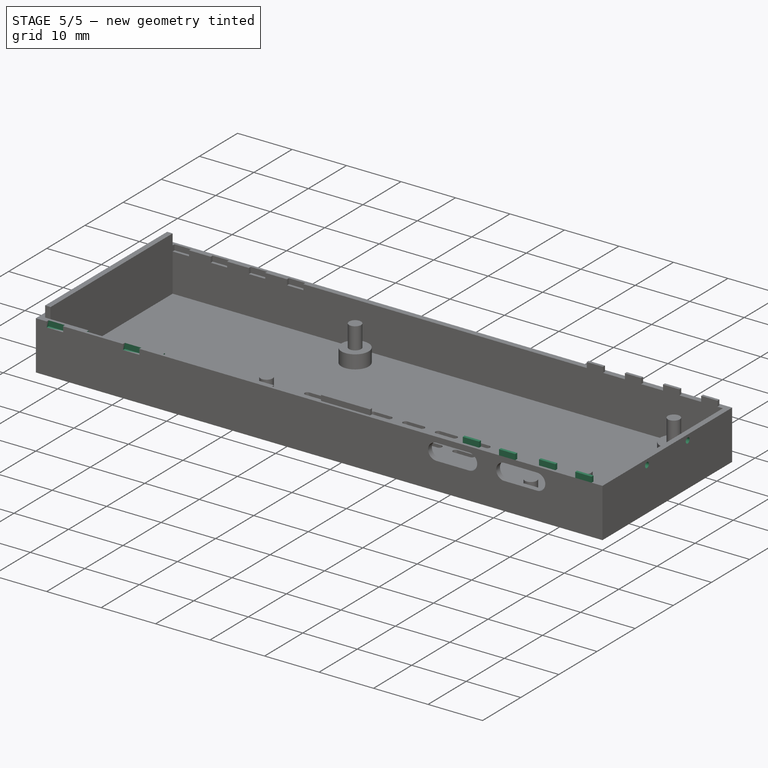
[diagram: stage 5 of 5 — iso view after this stage's code; geometry added in this stage tinted green]
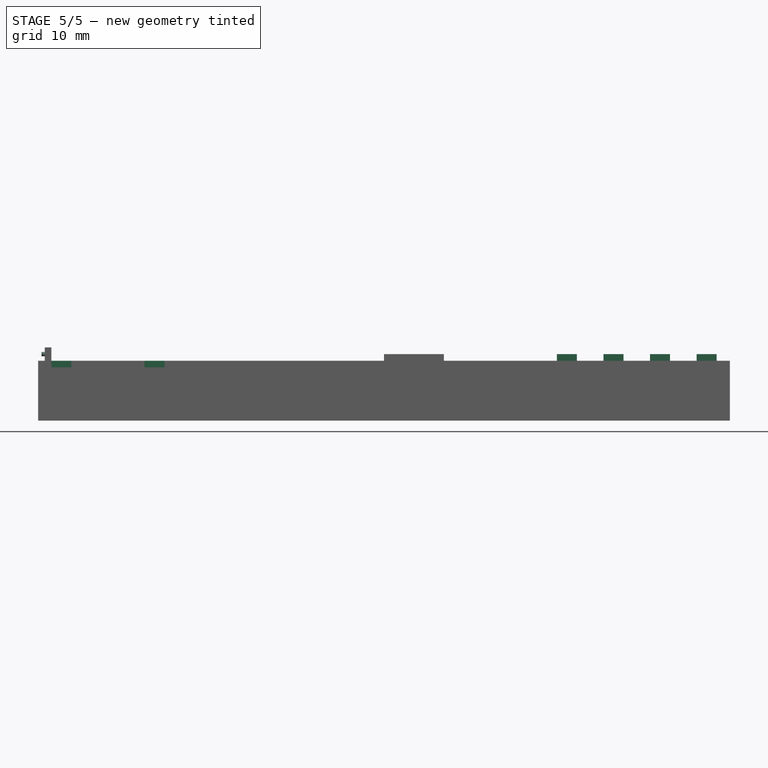
[diagram: stage 5 of 5 — front view after this stage's code; geometry added in this stage tinted green]
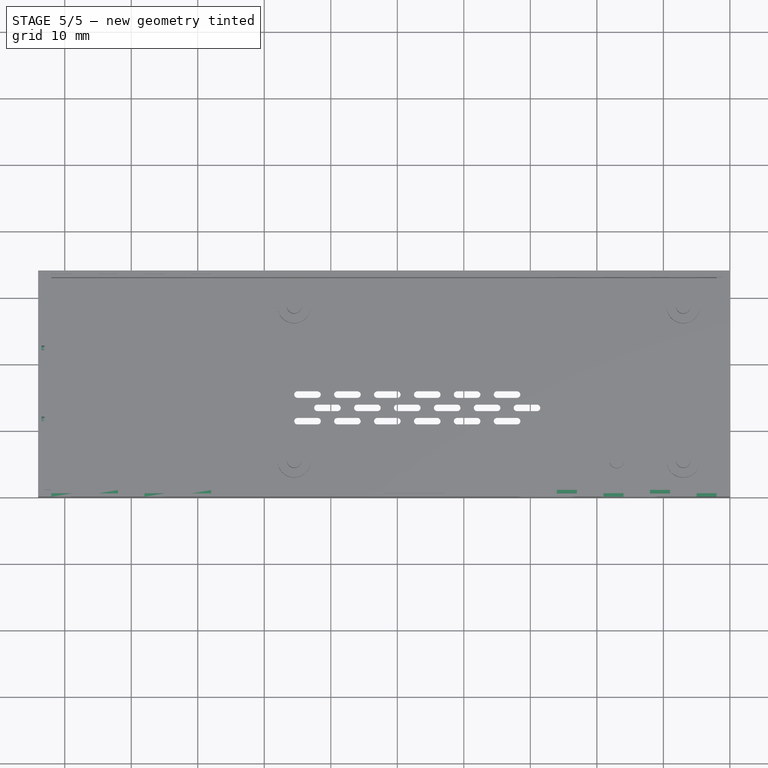
[diagram: stage 5 of 5 — top view after this stage's code; geometry added in this stage tinted green]
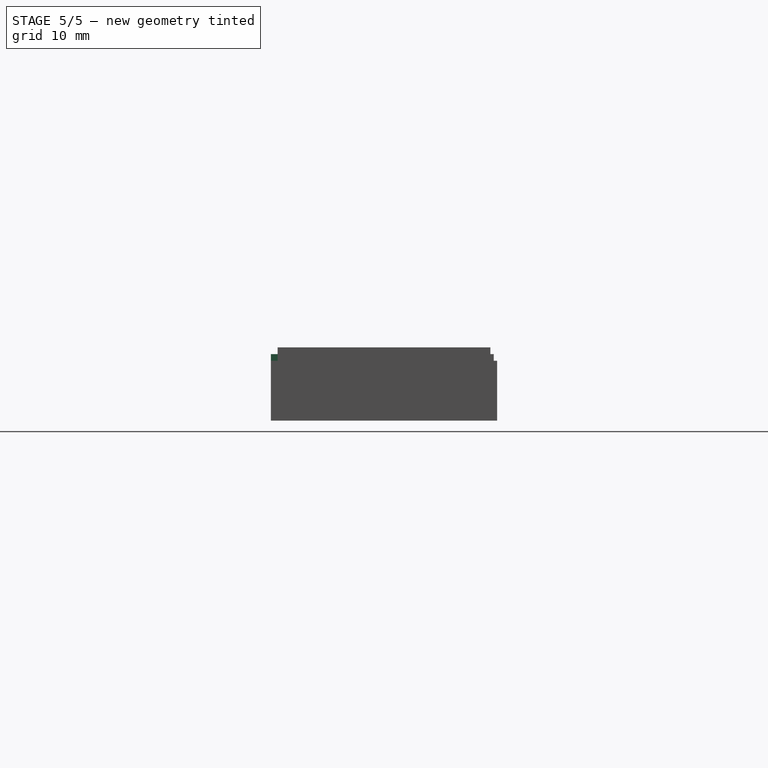
[diagram: stage 5 of 5 — right view after this stage's code; geometry added in this stage tinted green]
FEATURE [Sketcher::SketchObject] Sketch015  label="holes_on_outlet"
  MapMode = 5
  Placement = pos=(-1,0,0) rot=(0.57735,-0.57735,-0.57735;2.0944rad)
  Support = -> [Pad008]
  expr: Constraints[4] = Spreadsheet.inner_y_size / 3
  expr: Constraints[5] = Spreadsheet.wall_z_thickness + Spreadsheet.inner_z_size - Spreadsheet.inlet_height / 2
  expr: Constraints[2] = Spreadsheet.wall_y_thickness + Spreadsheet.inner_y_size / 3
  expr: Constraints[1] = Spreadsheet.inlet_height / 4
  expr: Constraints[0] = Spreadsheet.inlet_height / 4
  sketch-geometry (2):
    g0: Circle CenterX=-11.6667 CenterY=8 CenterZ=0 NormalX=0 NormalY=0 NormalZ=1 AngleXU=0 Radius=0.5
    g1: Circle CenterX=-22.3333 CenterY=8 CenterZ=0 NormalX=0 NormalY=0 NormalZ=1 AngleXU=0 Radius=0.5
  constraints (6):
    c: Radius(g0) = 0.5
    c: Radius(g1) = 0.5
    c: DistanceX(g0,g-1) = 11.6667
    c: Horizontal(g1,g0)
    c: DistanceX(g1,g0) = 10.6667
    c: DistanceY(g-1,g0) = 8
FEATURE [Sketcher::SketchObject] Sketch016  label="bumps_on_inlet"
  MapMode = 5
  Placement = pos=(-103,0,0) rot=(0.57735,-0.57735,-0.57735;2.0944rad)
  expr: Constraints[4] = Spreadsheet.inner_y_size / 3
  expr: Constraints[5] = Spreadsheet.wall_z_thickness + Spreadsheet.inner_z_size + Spreadsheet.inlet_height / 2
  expr: Constraints[2] = Spreadsheet.wall_y_thickness + Spreadsheet.inner_y_size / 3
  expr: Constraints[1] = Spreadsheet.inlet_height / 6
  expr: Constraints[0] = Spreadsheet.inlet_height / 6
  sketch-geometry (2):
    g0: Circle CenterX=-22.3333 CenterY=10 CenterZ=0 NormalX=0 NormalY=0 NormalZ=1 AngleXU=0 Radius=0.333333
    g1: Circle CenterX=-11.6667 CenterY=10 CenterZ=0 NormalX=0 NormalY=0 NormalZ=1 AngleXU=0 Radius=0.333333
  constraints (6):
    c: Radius(g1) = 0.333333
    c: Radius(g0) = 0.333333
    c: DistanceX(g1,g-1) = 11.6667
    c: Horizontal(g0,g1)
    c: DistanceX(g0,g1) = 10.6667
    c: DistanceY(g-1,g1) = 10
FEATURE [PartDesign::Pocket] Pocket006
  BaseFeature = -> Pad008
  Length = 1
  Length2 = 100
  Profile = -> Sketch015
  Type = 0
  expr: Length = Spreadsheet.wall_x_thickness / 2
FEATURE [PartDesign::Pad] Pad009
  BaseFeature = -> Pocket006
  Direction = (1,1,1)
  Length = 0.5
  Length2 = 100
  Profile = -> Sketch016
  Type = 0
  expr: Length = Spreadsheet.wall_x_thickness / 4
FEATURE [Sketcher::SketchObject] Sketch017  label="usb_x_outlets"
  MapMode = 5
  Placement = pos=(0,0,9) rot=(0,0,1;0rad)
  Support = -> [Pad009]
  expr: Constraints[46] = Spreadsheet.wall_x_thickness
  expr: Constraints[45] = Spreadsheet.wall_y_thickness / 2
  expr: Constraints[44] = Spreadsheet.wall_y_thickness / 2
  expr: Constraints[43] = Spreadsheet.inlet_x_distance
  expr: Constraints[42] = Spreadsheet.inlet_x_distance
  expr: Constraints[41] = Spreadsheet.inlet_x_distance
  expr: Constraints[40] = Spreadsheet.inlet_x_size
  expr: Constraints[39] = Spreadsheet.inlet_x_size
  expr: Constraints[38] = Spreadsheet.inlet_x_size
  expr: Constraints[37] = Spreadsheet.inlet_x_size
  sketch-geometry (16):
    g0: LineSegment StartX=-5 StartY=0.5 StartZ=0 EndX=-2 EndY=0.5 EndZ=0
    g1: LineSegment StartX=-2 StartY=0.5 StartZ=0 EndX=-2 EndY=0 EndZ=0
    g2: LineSegment StartX=-2 StartY=0 StartZ=0 EndX=-5 EndY=0 EndZ=0
    g3: LineSegment StartX=-5 StartY=0 StartZ=0 EndX=-5 EndY=0.5 EndZ=0
    g4: LineSegment StartX=-12 StartY=1 StartZ=0 EndX=-9 EndY=1 EndZ=0
    g5: LineSegment StartX=-9 StartY=1 StartZ=0 EndX=-9 EndY=0.5 EndZ=0
    g6: LineSegment StartX=-9 StartY=0.5 StartZ=0 EndX=-12 EndY=0.5 EndZ=0
    g7: LineSegment StartX=-12 StartY=0.5 StartZ=0 EndX=-12 EndY=1 EndZ=0
    g8: LineSegment StartX=-19 StartY=0.5 StartZ=0 EndX=-16 EndY=0.5 EndZ=0
    g9: LineSegment StartX=-16 StartY=0.5 StartZ=0 EndX=-16 EndY=0 EndZ=0
    g10: LineSegment StartX=-16 StartY=0 StartZ=0 EndX=-19 EndY=0 EndZ=0
    g11: LineSegment StartX=-19 StartY=0 StartZ=0 EndX=-19 EndY=0.5 EndZ=0
    g12: LineSegment StartX=-26 StartY=1 StartZ=0 EndX=-23 EndY=1 EndZ=0
    g13: LineSegment StartX=-23 StartY=1 StartZ=0 EndX=-23 EndY=0.5 EndZ=0
    g14: LineSegment StartX=-23 StartY=0.5 StartZ=0 EndX=-26 EndY=0.5 EndZ=0
    g15: LineSegment StartX=-26 StartY=0.5 StartZ=0 EndX=-26 EndY=1 EndZ=0
  constraints (48):
    c: Coincident(g0,g1)
    c: Coincident(g1,g2)
    c: Coincident(g2,g3)
    c: Coincident(g3,g0)
    c: Horizontal(g0)
    c: Horizontal(g2)
    c: Vertical(g1)
    c: Vertical(g3)
    c: Coincident(g4,g5)
    c: Coincident(g5,g6)
    c: Coincident(g6,g7)
    c: Coincident(g7,g4)
    c: Horizontal(g4)
    c: Horizontal(g6)
    c: Vertical(g5)
    c: Vertical(g7)
    c: Coincident(g8,g9)
    c: Coincident(g9,g10)
    c: Coincident(g10,g11)
    c: Coincident(g11,g8)
    c: Horizontal(g8)
    c: Horizontal(g10)
    c: Vertical(g9)
    c: Vertical(g11)
    c: Coincident(g12,g13)
    c: Coincident(g13,g14)
    c: Coincident(g14,g15)
    c: Coincident(g15,g12)
    c: Horizontal(g12)
    c: Horizontal(g14)
    c: Vertical(g13)
    c: Vertical(g15)
    c: Horizontal(g13,g8)
    c: Horizontal(g8,g5)
    c: Horizontal(g5,g0)
    c: Horizontal(g4,g12)
    c: Horizontal(g9,g1)
    c: DistanceX(g2,g1) = 3
    c: DistanceX(g6,g5) = 3
    c: DistanceX(g10,g9) = 3
    c: DistanceX(g14,g13) = 3
    c: DistanceX(g5,g2) = 4
    c: DistanceX(g9,g6) = 4
    c: DistanceX(g13,g8) = 4
    c: DistanceY(g5,g4) = 0.5
    c: DistanceY(g1,g0) = 0.5
    c: DistanceX(g1,g-1) = 2
    c: Horizontal(g1,g-1)
FEATURE [PartDesign::Pad] Pad010
  BaseFeature = -> Pad009
  Direction = (1,1,1)
  Length = 1
  Length2 = 100
  Profile = -> Sketch017
  Type = 0
  expr: Length = Spreadsheet.inlet_side_height
FEATURE [Sketcher::SketchObject] Sketch018  label="usb_x_inlets"
  MapMode = 5
  Placement = pos=(0,0,9) rot=(0,0,1;0rad)
  Support = -> [Pad010]
  expr: Constraints[47] = Spreadsheet.wall_x_thickness + Spreadsheet.inner_x_size
  expr: Constraints[45] = Spreadsheet.wall_y_thickness / 2
  expr: Constraints[44] = Spreadsheet.wall_y_thickness / 2
  expr: Constraints[43] = Spreadsheet.inlet_x_distance
  expr: Constraints[42] = Spreadsheet.inlet_x_distance
  expr: Constraints[41] = Spreadsheet.inlet_x_distance
  expr: Constraints[40] = Spreadsheet.inlet_x_size
  expr: Constraints[39] = Spreadsheet.inlet_x_size
  expr: Constraints[38] = Spreadsheet.inlet_x_size
  expr: Constraints[37] = Spreadsheet.inlet_x_size
  sketch-geometry (16):
    g0: LineSegment StartX=-102 StartY=0.5 StartZ=0 EndX=-99 EndY=0.5 EndZ=0
    g1: LineSegment StartX=-99 StartY=0.5 StartZ=0 EndX=-99 EndY=0 EndZ=0
    g2: LineSegment StartX=-99 StartY=0 StartZ=0 EndX=-102 EndY=0 EndZ=0
    g3: LineSegment StartX=-102 StartY=0 StartZ=0 EndX=-102 EndY=0.5 EndZ=0
    g4: LineSegment StartX=-95 StartY=1 StartZ=0 EndX=-92 EndY=1 EndZ=0
    g5: LineSegment StartX=-92 StartY=1 StartZ=0 EndX=-92 EndY=0.5 EndZ=0
    g6: LineSegment StartX=-92 StartY=0.5 StartZ=0 EndX=-95 EndY=0.5 EndZ=0
    g7: LineSegment StartX=-95 StartY=0.5 StartZ=0 EndX=-95 EndY=1 EndZ=0
    g8: LineSegment StartX=-88 StartY=0.5 StartZ=0 EndX=-85 EndY=0.5 EndZ=0
    g9: LineSegment StartX=-85 StartY=0.5 StartZ=0 EndX=-85 EndY=0 EndZ=0
    g10: LineSegment StartX=-85 StartY=0 StartZ=0 EndX=-88 EndY=0 EndZ=0
    g11: LineSegment StartX=-88 StartY=0 StartZ=0 EndX=-88 EndY=0.5 EndZ=0
    g12: LineSegment StartX=-81 StartY=1 StartZ=0 EndX=-78 EndY=1 EndZ=0
    g13: LineSegment StartX=-78 StartY=1 StartZ=0 EndX=-78 EndY=0.5 EndZ=0
    g14: LineSegment StartX=-78 StartY=0.5 StartZ=0 EndX=-81 EndY=0.5 EndZ=0
    g15: LineSegment StartX=-81 StartY=0.5 StartZ=0 EndX=-81 EndY=1 EndZ=0
  constraints (48):
    c: Coincident(g0,g1)
    c: Coincident(g1,g2)
    c: Coincident(g2,g3)
    c: Coincident(g3,g0)
    c: Horizontal(g0)
    c: Horizontal(g2)
    c: Vertical(g1)
    c: Vertical(g3)
    c: Coincident(g4,g5)
    c: Coincident(g5,g6)
    c: Coincident(g6,g7)
    c: Coincident(g7,g4)
    c: Horizontal(g4)
    c: Horizontal(g6)
    c: Vertical(g5)
    c: Vertical(g7)
    c: Coincident(g8,g9)
    c: Coincident(g9,g10)
    c: Coincident(g10,g11)
    c: Coincident(g11,g8)
    c: Horizontal(g8)
    c: Horizontal(g10)
    c: Vertical(g9)
    c: Vertical(g11)
    c: Coincident(g12,g13)
    c: Coincident(g13,g14)
    c: Coincident(g14,g15)
    c: Coincident(g15,g12)
    c: Horizontal(g12)
    c: Horizontal(g14)
    c: Vertical(g13)
    c: Vertical(g15)
    c: Horizontal(g0,g6)
    c: Horizontal(g6,g8)
    c: Horizontal(g8,g14)
    c: Horizontal(g2,g10)
    c: Horizontal(g4,g12)
    c: DistanceX(g0,g0) = 3
    c: DistanceX(g4,g4) = 3
    c: DistanceX(g8,g8) = 3
    c: DistanceX(g12,g12) = 3
    c: DistanceX(g0,g6) = 4
    c: DistanceX(g5,g8) = 4
    c: DistanceX(g8,g14) = 4
    c: DistanceY(g13,g12) = 0.5
    c: DistanceY(g9,g8) = 0.5
    c: Horizontal(g2,g-1)
    c: DistanceX(g2,g-1) = 102
FEATURE [PartDesign::Pocket] Pocket007
  BaseFeature = -> Pad010
  Length = 1
  Length2 = 100
  Profile = -> Sketch018
  Type = 0
  expr: Length = Spreadsheet.inlet_side_height
FEATURE [PartDesign::Body] Body
  Group = -> [Sketch,Pad,Sketch001,Pocket,Sketch002,Pad001,Sketch003,Pad002,Sketch004,Pad003,Sketch005,Pad004,Sketch006,Pad005,Sketch007,Pocket001,Sketch008,Pad006,Sketch009,Pocket002,Sketch010,Pocket003,LinearPattern,Sketch011,Pocket004,Sketch012,Pad007,Sketch013,Pocket005,Sketch014,Pad008,Sketch015,Sketch016,Pocket006,Pad009,Sketch017,Pad010,Sketch018,Pocket007]
  Origin = -> Origin001
  Tip = -> Pocket007
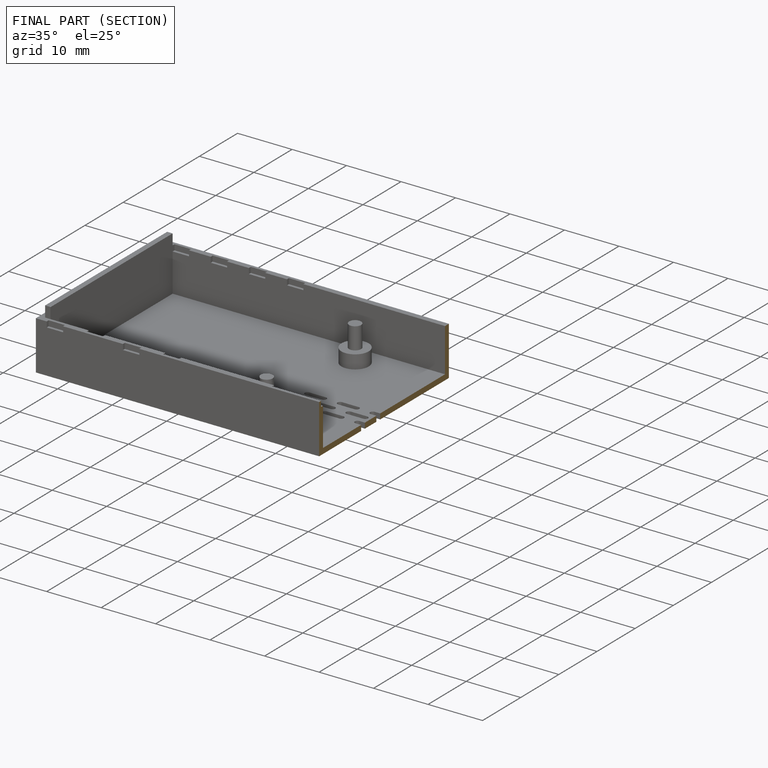
[diagram: finished part — half-section view (interior)]
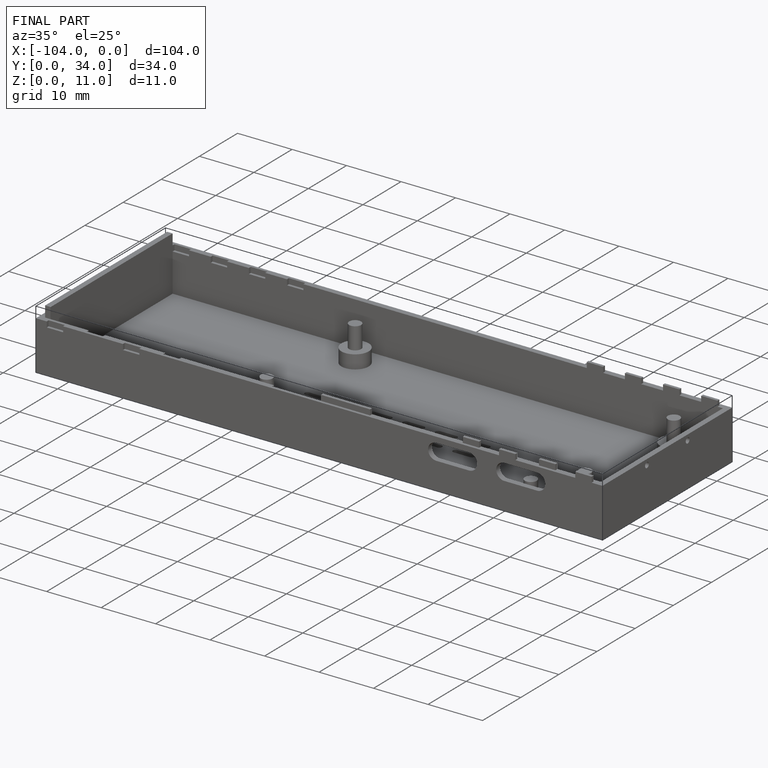
[diagram: finished part — iso view with bounding-box wireframe]
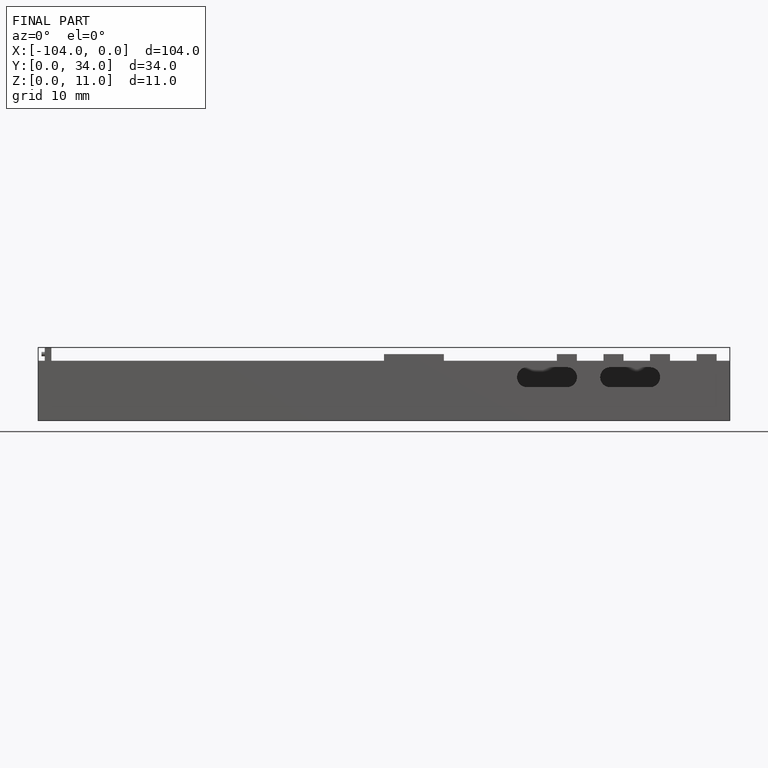
[diagram: finished part — front view with bounding-box wireframe]
